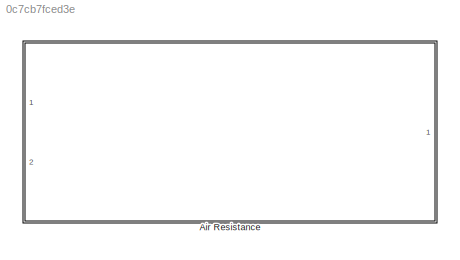
MODEL slx_0c7cb7fced3e
KIND library
CONFIG AbsTol = auto
CONFIG EnableMultiTasking = off
CONFIG FixedStep = auto
CONFIG MaxStep = auto
CONFIG MinStep = auto
CONFIG RelTol = 1e-3
CONFIG SampleTimeConstraint = Unconstrained
CONFIG Solver = VariableStepAuto
CONFIG SolverName = VariableStepAuto
CONFIG StartTime = 0.0
CONFIG StopTime = 10.0
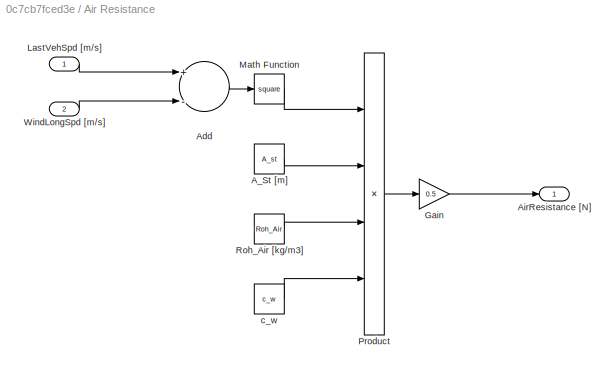
BLOCK [SubSystem] Air Resistance
  Ports = [2, 1]
  RequestExecContextInheritance = off
BLOCK [Constant] Air Resistance/A_St [m]
  Value = A_st
BLOCK [Sum] Air Resistance/Add
  InputSameDT = off
  Inputs = +-
  OutDataTypeStr = Inherit: Inherit via internal rule
  Ports = [2, 1]
  SaturateOnIntegerOverflow = off
BLOCK [Outport] Air Resistance/AirResistance [N]
  IconDisplay = Port number
  SampleTime = GlobalSampleTime
BLOCK [Gain] Air Resistance/Gain
  Gain = 0.5
  OutDataTypeStr = Inherit: Inherit via internal rule
  ParamDataTypeStr = Inherit: Inherit via internal rule
  SaturateOnIntegerOverflow = off
BLOCK [Inport] Air Resistance/LastVehSpd [m//s]
  IconDisplay = Port number
  SampleTime = LocalSampleTime
BLOCK [Math] Air Resistance/Math Function
  Operator = square
  Ports = [1, 1]
BLOCK [Product] Air Resistance/Product
  InputSameDT = off
  Inputs = 4
  OutDataTypeStr = Inherit: Inherit via internal rule
  Ports = [4, 1]
  RndMeth = Floor
  SaturateOnIntegerOverflow = off
BLOCK [Constant] Air Resistance/Roh_Air [kg//m3]
  Value = Roh_Air
BLOCK [Inport] Air Resistance/WindLongSpd [m//s]
  IconDisplay = Port number
  Port = 2
  SampleTime = LocalSampleTime
BLOCK [Constant] Air Resistance/c_w
  Value = c_w
LINE Air Resistance/A_St [m]:1 -> Air Resistance/Product:2
LINE Air Resistance/Add:1 -> Air Resistance/Math Function:1
LINE Air Resistance/Gain:1 -> Air Resistance/AirResistance [N]:1
LINE Air Resistance/LastVehSpd [m//s]:1 -> Air Resistance/Add:1
LINE Air Resistance/Math Function:1 -> Air Resistance/Product:1
LINE Air Resistance/Product:1 -> Air Resistance/Gain:1
LINE Air Resistance/Roh_Air [kg//m3]:1 -> Air Resistance/Product:3
LINE Air Resistance/WindLongSpd [m//s]:1 -> Air Resistance/Add:2
LINE Air Resistance/c_w:1 -> Air Resistance/Product:4
